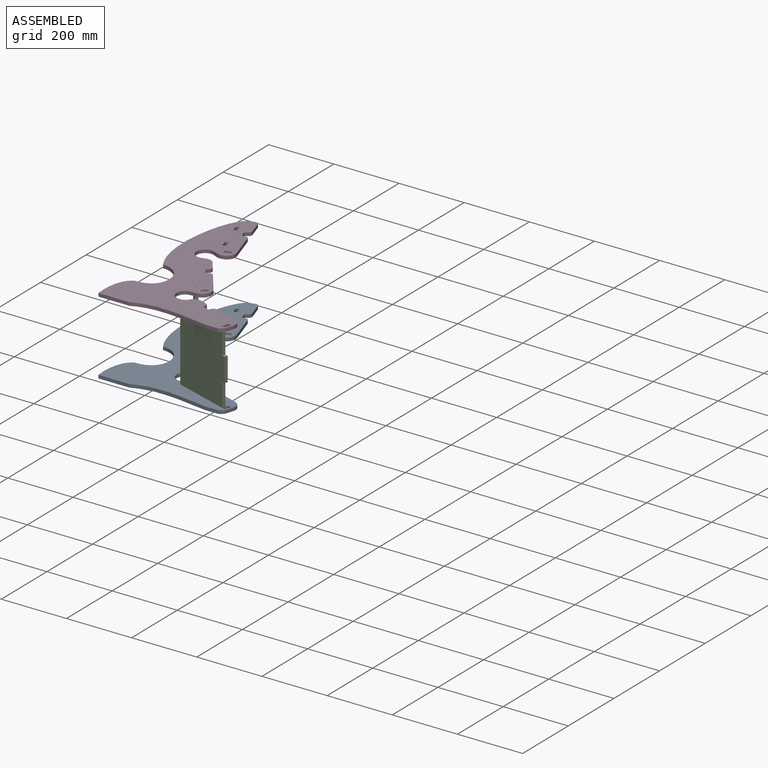
[diagram: assembled view]
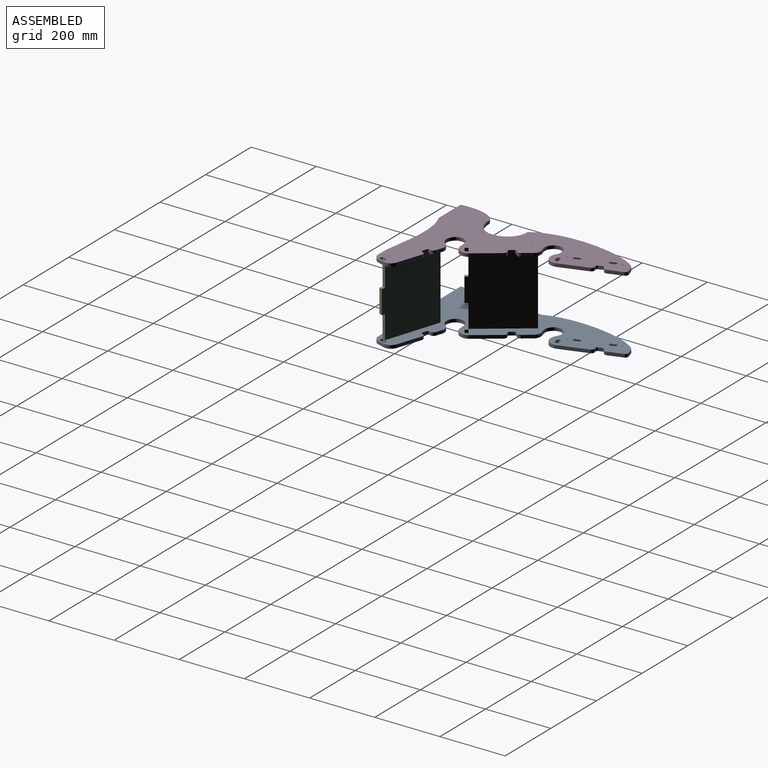
[diagram: assembled view, second angle]
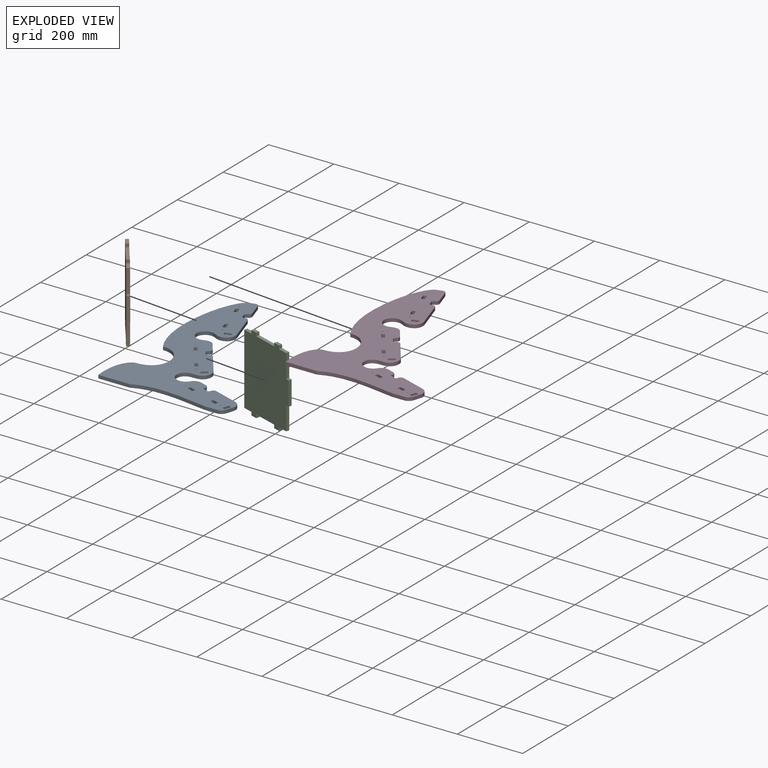
[diagram: exploded view]
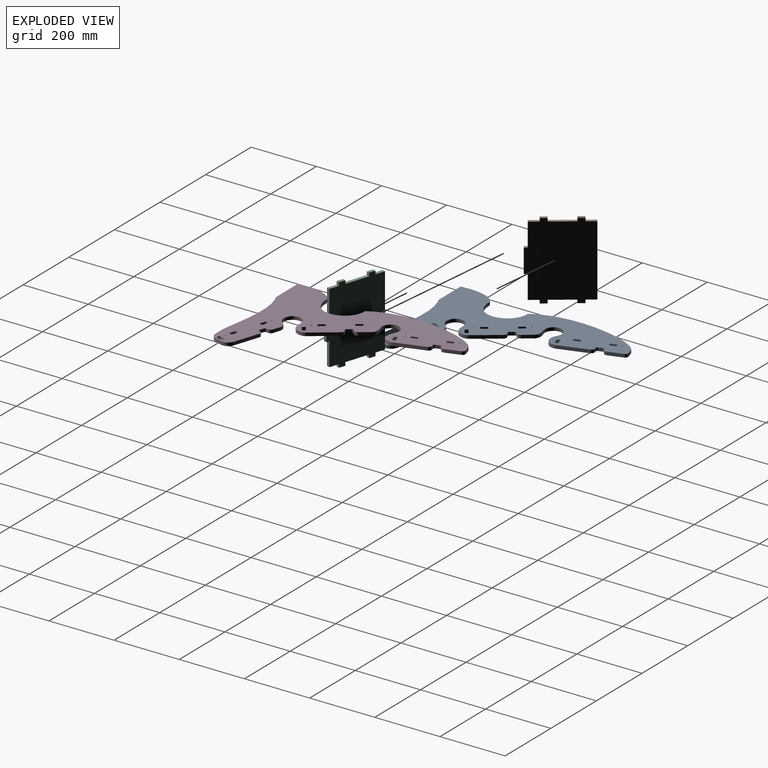
[diagram: exploded view, second angle]
ASSEMBLY  parts=4 mates=2
PART A: 130 faces, bbox 404.5x574.5x10 mm
  f0: plane 10x8.09mm, normal (0.59,-0.81,0), area 100mm2, adj f1,f127,f128,f129
  f1: plane 16.18x11.76mm, normal (-0.81,-0.59,0), area 200mm2, adj f0,f2,f128,f129
  f2: plane 10x8.09mm, normal (-0.59,0.81,0), area 100mm2, adj f1,f127,f128,f129
  f3: plane 10x8.09mm, normal (0.59,-0.81,0), area 100mm2, adj f4,f112,f128,f129
  f4: plane 16.18x11.76mm, normal (-0.81,-0.59,0), area 200mm2, adj f3,f5,f128,f129
  f5: plane 10x8.09mm, normal (-0.59,0.81,0), area 100mm2, adj f4,f112,f128,f129
  f6: plane 10x9.51mm, normal (0.31,-0.95,0), area 100mm2, adj f7,f113,f128,f129
  f7: plane 19.02x10mm, normal (-0.95,-0.31,0), area 200mm2, adj f6,f8,f128,f129
  f8: plane 10x9.51mm, normal (-0.31,0.95,0), area 100mm2, adj f7,f113,f128,f129
  f9: plane 10x9.51mm, normal (0.31,-0.95,0), area 100mm2, adj f10,f114,f128,f129
  f10: plane 19.02x10mm, normal (-0.95,-0.31,0), area 200mm2, adj f9,f11,f128,f129
  f11: plane 10x9.51mm, normal (-0.31,0.95,0), area 100mm2, adj f10,f114,f128,f129
  f12: plane 10x9.51mm, normal (0.95,-0.31,0), area 100mm2, adj f13,f115,f128,f129
  f13: plane 19.02x10mm, normal (-0.31,-0.95,0), area 200mm2, adj f12,f14,f128,f129
  f14: plane 10x9.51mm, normal (-0.95,0.31,0), area 100mm2, adj f13,f115,f128,f129
  f15: plane 10x9.51mm, normal (0.95,-0.31,0), area 100mm2, adj f16,f116,f128,f129
  f16: plane 19.02x10mm, normal (-0.31,-0.95,0), area 200mm2, adj f15,f17,f128,f129
  f17: plane 10x9.51mm, normal (-0.95,0.31,0), area 100mm2, adj f16,f116,f128,f129
  f18: extruded ~10x1.57mm, area 16.8mm2, adj f19,f117,f128,f129
  f19: extruded ~10x1.19mm, area 16.8mm2, adj f18,f20,f128,f129
  f20: extruded ~10x1.52mm, area 16.8mm2, adj f19,f21,f128,f129
  f21: extruded ~10x1.57mm, area 16.8mm2, adj f20,f22,f128,f129
  f22: extruded ~10x1.19mm, area 16.8mm2, adj f21,f117,f128,f129
  f23: extruded ~10x1.57mm, area 16.8mm2, adj f24,f118,f128,f129
  f24: extruded ~10x1.19mm, area 16.8mm2, adj f23,f25,f128,f129
  f25: extruded ~10x1.52mm, area 16.8mm2, adj f24,f26,f128,f129
  f26: extruded ~10x1.57mm, area 16.8mm2, adj f25,f27,f128,f129
  f27: extruded ~10x1.19mm, area 16.8mm2, adj f26,f118,f128,f129
  f28: extruded ~10x1.19mm, area 16.8mm2, adj f29,f119,f128,f129
  f29: extruded ~10x1.57mm, area 16.8mm2, adj f28,f30,f128,f129
  f30: extruded ~10x1.52mm, area 16.8mm2, adj f29,f31,f128,f129
  f31: extruded ~10x1.19mm, area 16.8mm2, adj f30,f32,f128,f129
  f32: extruded ~10x1.57mm, area 16.8mm2, adj f31,f119,f128,f129
  f33: extruded ~10x1.19mm, area 16.8mm2, adj f34,f120,f128,f129
  f34: extruded ~10x1.57mm, area 16.8mm2, adj f33,f35,f128,f129
  f35: extruded ~10x1.52mm, area 16.8mm2, adj f34,f36,f128,f129
  f36: extruded ~10x1.19mm, area 16.8mm2, adj f35,f37,f128,f129
  f37: extruded ~10x1.57mm, area 16.8mm2, adj f36,f120,f128,f129
  f38: extruded ~10x1.46mm, area 16.8mm2, adj f39,f121,f128,f129
  f39: extruded ~10x1.59mm, area 16.8mm2, adj f38,f40,f128,f129
  f40: extruded ~10x1.29mm, area 16.8mm2, adj f39,f41,f128,f129
  f41: extruded ~10x1.46mm, area 16.8mm2, adj f40,f42,f128,f129
  f42: extruded ~10x1.59mm, area 16.8mm2, adj f41,f121,f128,f129
  f43: extruded ~10x1.46mm, area 16.8mm2, adj f44,f122,f128,f129
  f44: extruded ~10x1.59mm, area 16.8mm2, adj f43,f45,f128,f129
  f45: extruded ~10x1.29mm, area 16.8mm2, adj f44,f46,f128,f129
  f46: extruded ~10x1.46mm, area 16.8mm2, adj f45,f47,f128,f129
  f47: extruded ~10x1.59mm, area 16.8mm2, adj f46,f122,f128,f129
  f48: extruded ~10x7.64mm, area 78.6mm2, adj f49,f123,f128,f129
  f49: plane 10x2.9mm, normal (-0.32,0.95,0), area 30.6mm2, adj f48,f50,f128,f129
  f50: extruded ~10x3.82mm, area 39.3mm2, adj f49,f51,f128,f129
  f51: extruded ~10x2.89mm, area 39.3mm2, adj f50,f52,f128,f129
  f52: plane 12.34x10mm, normal (0.95,0.32,0), area 130mm2, adj f51,f53,f128,f129
  f53: extruded ~10x6.32mm, area 78.5mm2, adj f52,f54,f128,f129
  f54: plane 10x2.91mm, normal (0.32,-0.95,0), area 30.7mm2, adj f53,f55,f128,f129
  f55: extruded ~12.64x10mm, area 157.1mm2, adj f54,f56,f128,f129
  f56: plane 38.53x12.42mm, normal (0.95,0.31,0), area 404.8mm2, adj f55,f57,f128,f129
  f57: extruded ~10.72x10mm, area 127.1mm2, adj f56,f58,f128,f129
  f58: extruded ~10x7.48mm, area 77.2mm2, adj f57,f59,f128,f129
  f59: extruded ~22.25x10mm, area 236.6mm2, adj f58,f60,f128,f129
  f60: extruded ~333.45x55.83mm, area 3515.7mm2, adj f59,f61,f128,f129
  f61: extruded ~119.33x67.1mm, area 1989mm2, adj f60,f62,f128,f129
  f62: extruded ~112.06x34.01mm, area 1231.8mm2, adj f61,f63,f128,f129
  f63: plane 95.68x10mm, normal (0,-1,0), area 956.8mm2, adj f62,f64,f128,f129
  f64: extruded ~232.56x17.12mm, area 2361.3mm2, adj f63,f65,f128,f129
  f65: extruded ~45.49x10mm, area 462.3mm2, adj f64,f66,f128,f129
  f66: extruded ~17.77x11.27mm, area 217mm2, adj f65,f67,f128,f129
  f67: plane 15.88x10mm, normal (0.96,-0.3,0), area 166.3mm2, adj f66,f68,f128,f129
  f68: extruded ~28.01x14.61mm, area 341.1mm2, adj f67,f69,f128,f129
  f69: extruded ~77.23x25.71mm, area 814mm2, adj f68,f70,f128,f129
  f70: extruded ~10x7.63mm, area 78.6mm2, adj f69,f71,f128,f129
  f71: extruded ~10x5.82mm, area 78.6mm2, adj f70,f72,f128,f129
  f72: plane 10x2.91mm, normal (-0.95,0.31,0), area 30.6mm2, adj f71,f73,f128,f129
  f73: extruded ~10x2.91mm, area 39.3mm2, adj f72,f74,f128,f129
  f74: extruded ~10x3.82mm, area 39.3mm2, adj f73,f75,f128,f129
  f75: plane 12.37x10mm, normal (0.31,0.95,0), area 130mm2, adj f74,f76,f128,f129
  f76: extruded ~10x6.3mm, area 78.5mm2, adj f75,f77,f128,f129
  f77: plane 10x2.92mm, normal (0.95,-0.31,0), area 30.7mm2, adj f76,f78,f128,f129
  f78: extruded ~12.6x10mm, area 157.1mm2, adj f77,f79,f128,f129
  f79: plane 21.32x10mm, normal (0.32,0.95,0), area 225mm2, adj f78,f80,f128,f129
  f80: extruded ~26.36x12.13mm, area 309.1mm2, adj f79,f81,f128,f129
  f81: extruded ~45.72x11.98mm, area 536.4mm2, adj f80,f82,f128,f129
  f82: extruded ~40.48x30.29mm, area 601.5mm2, adj f81,f83,f128,f129
  f83: extruded ~30.95x10mm, area 331.3mm2, adj f82,f84,f128,f129
  f84: extruded ~36.47x10mm, area 398.7mm2, adj f83,f85,f128,f129
  f85: plane 68.35x49.47mm, normal (0.81,0.59,0), area 843.7mm2, adj f84,f86,f128,f129
  f86: extruded ~10x6.52mm, area 78.6mm2, adj f85,f87,f128,f129
  f87: extruded ~10x7.45mm, area 78.6mm2, adj f86,f88,f128,f129
  f88: plane 10x2.48mm, normal (-0.59,0.81,0), area 30.6mm2, adj f87,f89,f128,f129
  f89: extruded ~10x3.72mm, area 39.3mm2, adj f88,f90,f128,f129
  f90: extruded ~10x3.26mm, area 39.3mm2, adj f89,f91,f128,f129
  f91: plane 10.53x10mm, normal (0.81,0.59,0), area 130mm2, adj f90,f92,f128,f129
  f92: extruded ~10x6.98mm, area 78.5mm2, adj f91,f93,f128,f129
  f93: plane 10x2.48mm, normal (0.59,-0.81,0), area 30.7mm2, adj f92,f94,f128,f129
  f94: extruded ~13.96x10mm, area 157.1mm2, adj f93,f95,f128,f129
  f95: plane 27.82x19.92mm, normal (0.81,0.58,0), area 342.2mm2, adj f94,f96,f128,f129
  f96: extruded ~30.53x10mm, area 332.4mm2, adj f95,f97,f128,f129
  f97: extruded ~34.16x11.89mm, area 385.5mm2, adj f96,f98,f128,f129
  f98: extruded ~34.3x10mm, area 379.4mm2, adj f97,f99,f128,f129
  f99: extruded ~33.39x10mm, area 356mm2, adj f98,f100,f128,f129
  f100: extruded ~34.31x10mm, area 362.2mm2, adj f99,f101,f128,f129
  f101: extruded ~33.77x12.03mm, area 382.1mm2, adj f100,f102,f128,f129
  f102: plane 82.57x26.41mm, normal (0.95,0.3,0), area 867mm2, adj f101,f123,f128,f129
  f103: plane 10x9.51mm, normal (0.31,0.95,0), area 100mm2, adj f104,f124,f128,f129
  f104: plane 19.02x10mm, normal (0.95,-0.31,0), area 200mm2, adj f103,f105,f128,f129
  f105: plane 10x9.51mm, normal (-0.31,-0.95,0), area 100mm2, adj f104,f124,f128,f129
  f106: plane 10x9.51mm, normal (0.95,0.31,0), area 100mm2, adj f107,f125,f128,f129
  f107: plane 19.02x10mm, normal (0.31,-0.95,0), area 200mm2, adj f106,f108,f128,f129
  f108: plane 10x9.51mm, normal (-0.95,-0.31,0), area 100mm2, adj f107,f125,f128,f129
  f109: plane 10x8.09mm, normal (0.81,0.59,0), area 100mm2, adj f110,f126,f128,f129
  f110: plane 16.18x11.76mm, normal (0.59,-0.81,0), area 200mm2, adj f109,f111,f128,f129
  f111: plane 10x8.09mm, normal (-0.81,-0.59,0), area 100mm2, adj f110,f126,f128,f129
  f112: plane 16.18x11.76mm, normal (0.81,0.59,0), area 200mm2, adj f3,f5,f128,f129
  f113: plane 19.02x10mm, normal (0.95,0.31,0), area 200mm2, adj f6,f8,f128,f129
  f114: plane 19.02x10mm, normal (0.95,0.31,0), area 200mm2, adj f9,f11,f128,f129
  f115: plane 19.02x10mm, normal (0.31,0.95,0), area 200mm2, adj f12,f14,f128,f129
  f116: plane 19.02x10mm, normal (0.31,0.95,0), area 200mm2, adj f15,f17,f128,f129
  f117: extruded ~10x1.52mm, area 16.8mm2, adj f18,f22,f128,f129
  f118: extruded ~10x1.52mm, area 16.8mm2, adj f23,f27,f128,f129
  f119: extruded ~10x1.52mm, area 16.8mm2, adj f28,f32,f128,f129
  f120: extruded ~10x1.52mm, area 16.8mm2, adj f33,f37,f128,f129
  f121: extruded ~10x1.29mm, area 16.8mm2, adj f38,f42,f128,f129
  f122: extruded ~10x1.29mm, area 16.8mm2, adj f43,f47,f128,f129
  f123: extruded ~10x5.79mm, area 78.6mm2, adj f48,f102,f128,f129
  f124: plane 19.02x10mm, normal (-0.95,0.31,0), area 200mm2, adj f103,f105,f128,f129
  f125: plane 19.02x10mm, normal (-0.31,0.95,0), area 200mm2, adj f106,f108,f128,f129
  f126: plane 16.18x11.76mm, normal (-0.59,0.81,0), area 200mm2, adj f109,f111,f128,f129
  f127: plane 16.18x11.76mm, normal (0.81,0.59,0), area 200mm2, adj f0,f2,f128,f129
  f128: plane 574.53x404.5mm, normal (0,0,1), area 82674.2mm2, adj f0,f1,f2,f3,f4,f5,f6,f7
  f129: plane 574.53x404.5mm, normal (0,0,-1), area 82674.2mm2, adj f0,f1,f2,f3,f4,f5,f6,f7
PART B: 26 faces, bbox 237x185x10 mm
  f0: plane 75x10mm, normal (-1,0,0), area 750mm2, adj f1,f23,f24,f25
  f1: plane 10x10mm, normal (0,1,0), area 100mm2, adj f0,f2,f24,f25
  f2: plane 20x10mm, normal (-1,0,0), area 200mm2, adj f1,f3,f24,f25
  f3: plane 10x10mm, normal (0,-1,0), area 100mm2, adj f2,f4,f24,f25
  f4: plane 30x10mm, normal (-1,0,0), area 300mm2, adj f3,f5,f24,f25
  f5: plane 72x10mm, normal (0,-1,0), area 720mm2, adj f4,f6,f24,f25
  f6: plane 10x10mm, normal (-1,0,0), area 100mm2, adj f5,f7,f24,f25
  f7: plane 73x10mm, normal (0,-1,0), area 730mm2, adj f6,f8,f24,f25
  f8: plane 10x10mm, normal (1,0,0), area 100mm2, adj f7,f9,f24,f25
  f9: plane 72x10mm, normal (0,-1,0), area 720mm2, adj f8,f10,f24,f25
  f10: plane 30x10mm, normal (1,0,0), area 300mm2, adj f9,f11,f24,f25
  f11: plane 10x10mm, normal (0,-1,0), area 100mm2, adj f10,f12,f24,f25
  f12: plane 20x10mm, normal (1,0,0), area 200mm2, adj f11,f13,f24,f25
  f13: plane 10x10mm, normal (0,1,0), area 100mm2, adj f12,f14,f24,f25
  f14: plane 75x10mm, normal (1,0,0), area 750mm2, adj f13,f15,f24,f25
  f15: plane 10x10mm, normal (0,-1,0), area 100mm2, adj f14,f16,f24,f25
  f16: plane 20x10mm, normal (1,0,0), area 200mm2, adj f15,f17,f24,f25
  f17: plane 10x10mm, normal (0,1,0), area 100mm2, adj f16,f18,f24,f25
  f18: plane 30x10mm, normal (1,0,0), area 300mm2, adj f17,f19,f24,f25
  f19: plane 217x10mm, normal (0,1,0), area 2170mm2, adj f18,f20,f24,f25
  f20: plane 30x10mm, normal (-1,0,0), area 300mm2, adj f19,f21,f24,f25
  f21: plane 10x10mm, normal (0,1,0), area 100mm2, adj f20,f22,f24,f25
  f22: plane 20x10mm, normal (-1,0,0), area 200mm2, adj f21,f23,f24,f25
  f23: plane 10x10mm, normal (0,-1,0), area 100mm2, adj f0,f22,f24,f25
  f24: plane 237x185mm, normal (0,0,1), area 39505mm2, adj f0,f1,f2,f3,f4,f5,f6,f7
  f25: plane 237x185mm, normal (0,0,-1), area 39505mm2, adj f0,f1,f2,f3,f4,f5,f6,f7
PART C: same geometry as B
PART D: same geometry as A
PLACE A t=(-33.16,1.02,-83.45)mm
PLACE B rot(axis=(0.3,-0.91,0.3),95.5deg) t=(163.76,201.72,-73.45)mm
PLACE C rot(axis=(0.51,-0.7,0.51),110.2deg) t=(339.49,68.55,-73.45)mm
PLACE D t=(-33.16,1.02,143.55)mm
MATE fastened B.f11 <-> D.f5  axis (0.59,-0.81,0) through (142.09,223.05,148.55)mm
MATE fastened C.f3 <-> A.f17  axis (0.95,-0.31,0) through (309.42,73.07,-78.45)mm
